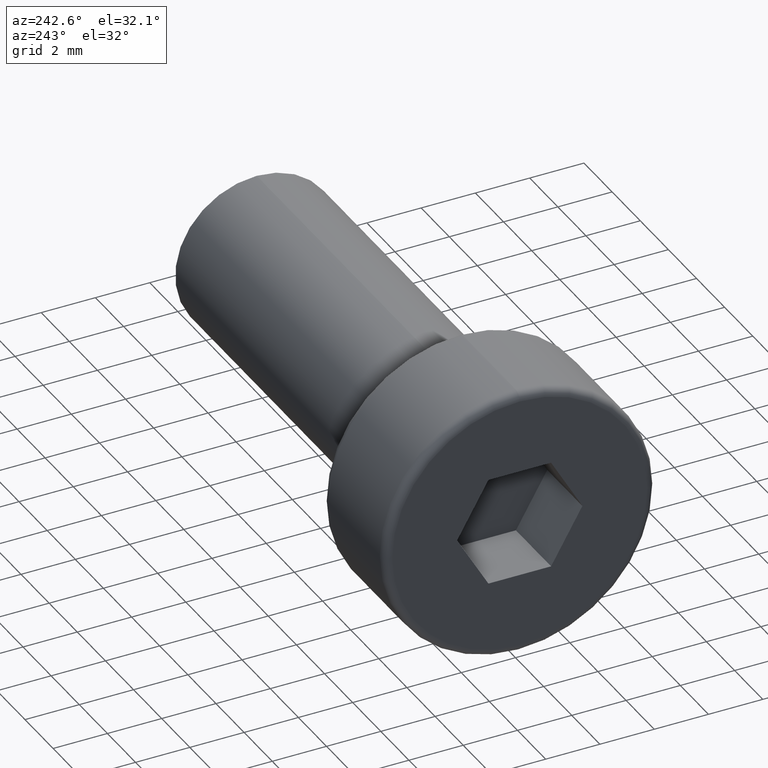
[diagram: clean part render]
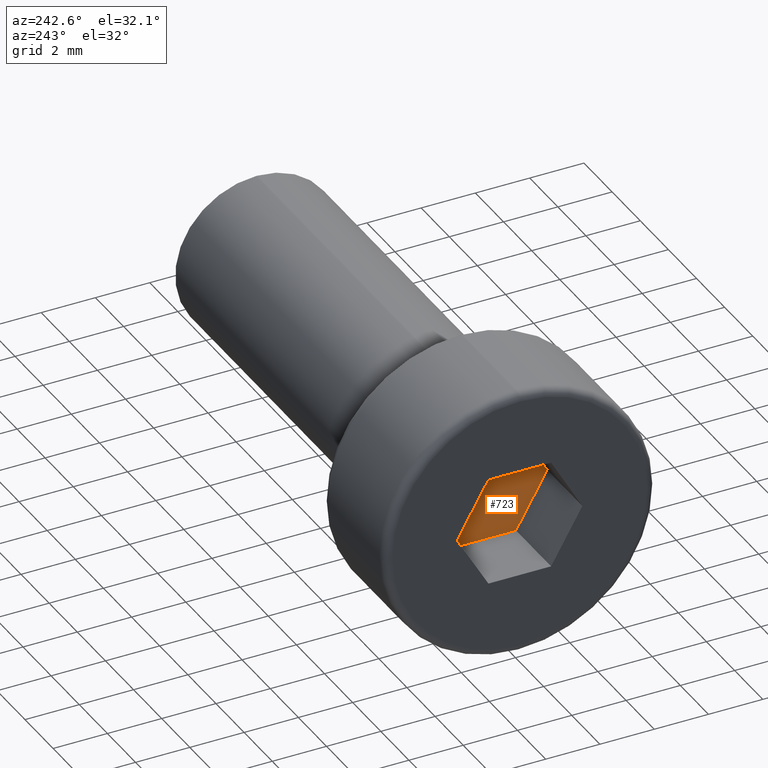
[diagram: same view with one face highlighted and labeled with its STEP entity id]
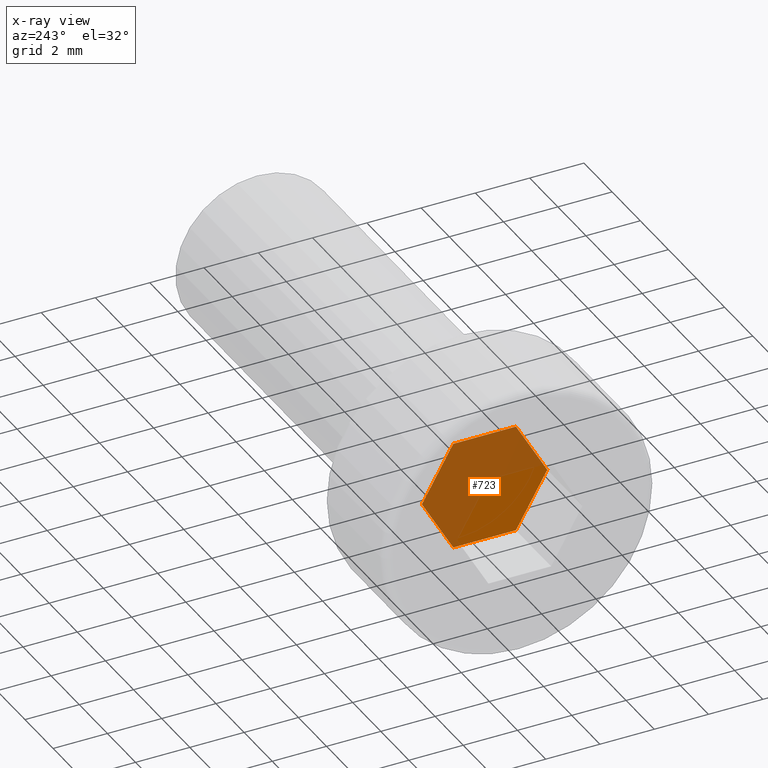
[diagram: x-ray of the same camera — body ghosted, the highlighted face saturated]
A machine part, auxiliary view. The second image highlights one B-rep face of the part: STEP entity #723.
The next image is the same camera in x-ray: the body ghosted, the highlighted face saturated — about 63% of this face is hidden behind the body in this view.
In plain terms, the highlighted planar face has unit normal (1, 0, 0).
Its self-contained STEP definition (entity closure, byte-faithful):
#65 = VERTEX_POINT ( 'NONE', #548 ) ;
#85 = CARTESIAN_POINT ( 'NONE',  ( -1.800000000000000000, -2.309401076758518000, 8.673617379884035500E-016 ) ) ;
#96 = CARTESIAN_POINT ( 'NONE',  ( -1.800000000000000000, 1.154700538379260600, -2.000000000000013800 ) ) ;
#148 = CARTESIAN_POINT ( 'NONE',  ( -1.800000000000000000, 1.154700538379259000, 2.000000000000013300 ) ) ;
#150 = CARTESIAN_POINT ( 'NONE',  ( -1.800000000000000000, -1.154700538379260100, 2.000000000000015100 ) ) ;
#166 = EDGE_CURVE ( 'NONE', #813, #669, #385, .T. ) ;
#187 = LINE ( 'NONE', #809, #816 ) ;
#189 = DIRECTION ( 'NONE',  ( -0.0000000000000000000, -0.5000000000000000000, 0.8660254037844386000 ) ) ;
#201 = VECTOR ( 'NONE', #244, 1000.000000000000000 ) ;
#244 = DIRECTION ( 'NONE',  ( -0.0000000000000000000, 1.000000000000000000, -7.511572993685745900E-016 ) ) ;
#261 = EDGE_CURVE ( 'NONE', #65, #813, #317, .T. ) ;
#273 = DIRECTION ( 'NONE',  ( -0.0000000000000000000, 0.4999999999999993300, 0.8660254037844389300 ) ) ;
#274 = LINE ( 'NONE', #96, #741 ) ;
#275 = AXIS2_PLACEMENT_3D ( 'NONE', #455, #327, #476 ) ;
#288 = ORIENTED_EDGE ( 'NONE', *, *, #583, .T. ) ;
#294 = CARTESIAN_POINT ( 'NONE',  ( -1.800000000000000000, 2.309401076758518900, 8.673617379884035500E-016 ) ) ;
#296 = PLANE ( 'NONE',  #275 ) ;
#303 = VECTOR ( 'NONE', #273, 1000.000000000000100 ) ;
#308 = EDGE_LOOP ( 'NONE', ( #719, #288, #574, #428, #475, #416 ) ) ;
#309 = VECTOR ( 'NONE', #785, 1000.000000000000000 ) ;
#317 = LINE ( 'NONE', #745, #303 ) ;
#325 = LINE ( 'NONE', #692, #309 ) ;
#327 = DIRECTION ( 'NONE',  ( 1.000000000000000000, -0.0000000000000000000, 0.0000000000000000000 ) ) ;
#346 = EDGE_CURVE ( 'NONE', #546, #413, #274, .T. ) ;
#363 = VERTEX_POINT ( 'NONE', #585 ) ;
#385 = LINE ( 'NONE', #148, #201 ) ;
#413 = VERTEX_POINT ( 'NONE', #578 ) ;
#416 = ORIENTED_EDGE ( 'NONE', *, *, #346, .T. ) ;
#428 = ORIENTED_EDGE ( 'NONE', *, *, #166, .T. ) ;
#449 = DIRECTION ( 'NONE',  ( -0.0000000000000000000, -0.4999999999999994400, -0.8660254037844389300 ) ) ;
#455 = CARTESIAN_POINT ( 'NONE',  ( -1.800000000000000000, 0.0000000000000000000, 0.0000000000000000000 ) ) ;
#475 = ORIENTED_EDGE ( 'NONE', *, *, #545, .T. ) ;
#476 = DIRECTION ( 'NONE',  ( 0.0000000000000000000, 0.0000000000000000000, -1.000000000000000000 ) ) ;
#545 = EDGE_CURVE ( 'NONE', #669, #546, #187, .T. ) ;
#546 = VERTEX_POINT ( 'NONE', #294 ) ;
#548 = CARTESIAN_POINT ( 'NONE',  ( -1.800000000000000000, -2.309401076758518000, 8.673617379884035500E-016 ) ) ;
#574 = ORIENTED_EDGE ( 'NONE', *, *, #261, .T. ) ;
#578 = CARTESIAN_POINT ( 'NONE',  ( -1.800000000000000000, 1.154700538379260600, -2.000000000000013800 ) ) ;
#583 = EDGE_CURVE ( 'NONE', #363, #65, #648, .T. ) ;
#585 = CARTESIAN_POINT ( 'NONE',  ( -1.800000000000000000, -1.154700538379258300, -2.000000000000012900 ) ) ;
#587 = EDGE_CURVE ( 'NONE', #413, #363, #325, .T. ) ;
#595 = DIRECTION ( 'NONE',  ( -0.0000000000000000000, 0.5000000000000003300, -0.8660254037844383700 ) ) ;
#601 = FACE_OUTER_BOUND ( 'NONE', #308, .T. ) ;
#625 = VECTOR ( 'NONE', #189, 1000.000000000000200 ) ;
#644 = CARTESIAN_POINT ( 'NONE',  ( -1.800000000000000000, 1.154700538379259000, 2.000000000000013300 ) ) ;
#648 = LINE ( 'NONE', #85, #625 ) ;
#669 = VERTEX_POINT ( 'NONE', #644 ) ;
#692 = CARTESIAN_POINT ( 'NONE',  ( -1.800000000000000000, -1.154700538379258300, -2.000000000000012900 ) ) ;
#719 = ORIENTED_EDGE ( 'NONE', *, *, #587, .T. ) ;
#723 = ADVANCED_FACE ( 'NONE', ( #601 ), #296, .F. ) ;
#741 = VECTOR ( 'NONE', #449, 1000.000000000000200 ) ;
#745 = CARTESIAN_POINT ( 'NONE',  ( -1.800000000000000000, -1.154700538379260100, 2.000000000000015100 ) ) ;
#785 = DIRECTION ( 'NONE',  ( -0.0000000000000000000, -1.000000000000000000, 3.755786496842872900E-016 ) ) ;
#809 = CARTESIAN_POINT ( 'NONE',  ( -1.800000000000000000, 2.309401076758518900, 8.673617379884035500E-016 ) ) ;
#813 = VERTEX_POINT ( 'NONE', #150 ) ;
#816 = VECTOR ( 'NONE', #595, 1000.000000000000200 ) ;